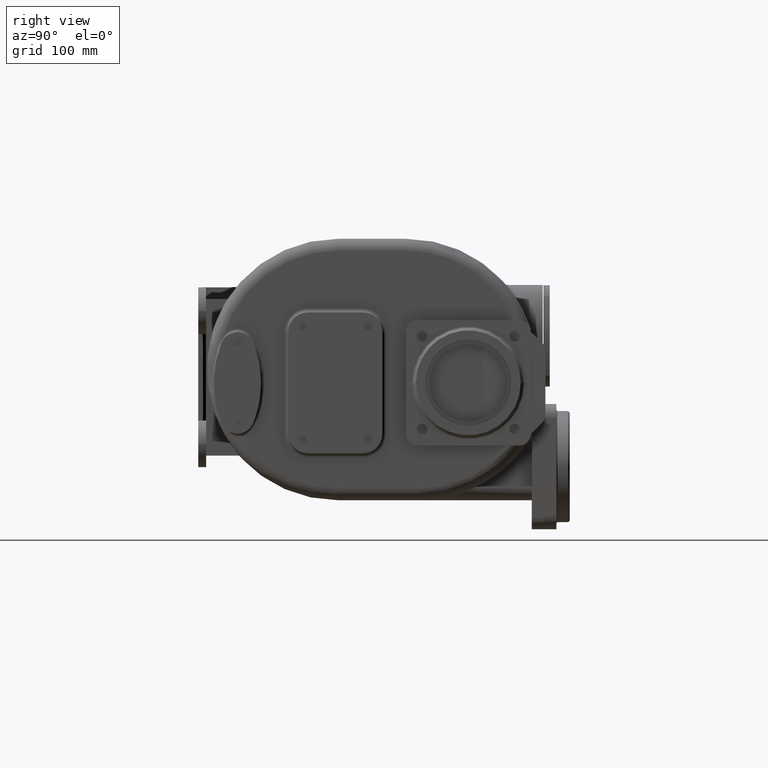
[diagram: clean part render]
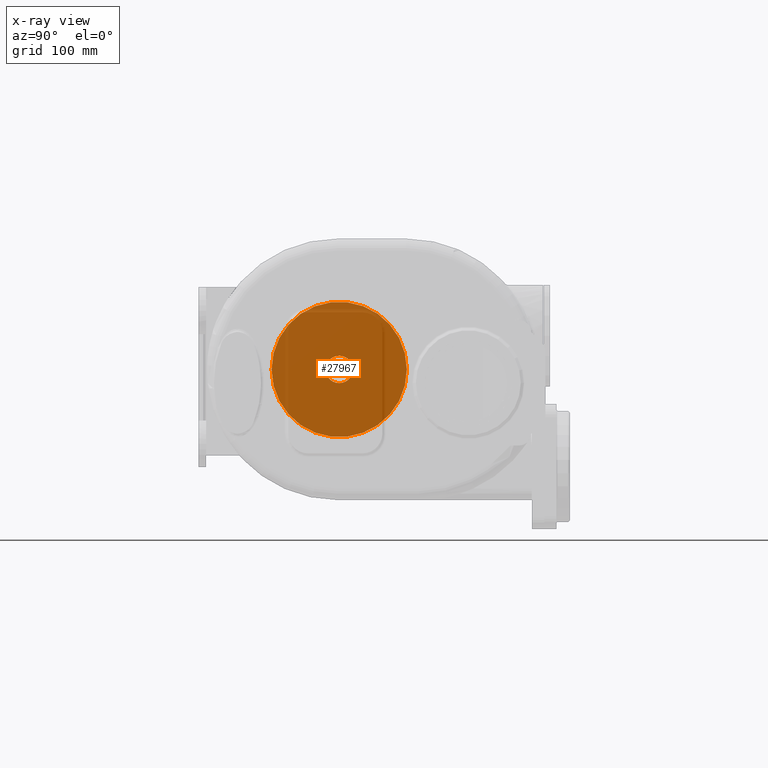
[diagram: x-ray — body ghosted, one internal face saturated and labeled with its STEP entity id]
A machine part, right view, then the same camera in x-ray: the body is ghosted and one INTERNAL B-rep face — a face not visible from any outside direction — is saturated and labeled: STEP entity #27967.
In plain terms, the highlighted planar face has unit normal (1, 0, 0).
Its self-contained STEP definition (entity closure, byte-faithful):
#27670=CARTESIAN_POINT('',(-7.E1,1.7E2,0.E0));
#27671=DIRECTION('',(-1.E0,0.E0,0.E0));
#27672=DIRECTION('',(0.E0,-1.E0,0.E0));
#27673=AXIS2_PLACEMENT_3D('',#27670,#27671,#27672);
#27675=CARTESIAN_POINT('',(-7.E1,1.7E2,0.E0));
#27676=DIRECTION('',(-1.E0,0.E0,0.E0));
#27677=DIRECTION('',(0.E0,1.E0,0.E0));
#27678=AXIS2_PLACEMENT_3D('',#27675,#27676,#27677);
#27680=CARTESIAN_POINT('',(-7.E1,1.7E2,0.E0));
#27681=DIRECTION('',(1.E0,0.E0,0.E0));
#27682=DIRECTION('',(0.E0,0.E0,-1.E0));
#27683=AXIS2_PLACEMENT_3D('',#27680,#27681,#27682);
#27685=DIRECTION('',(0.E0,1.E0,0.E0));
#27686=VECTOR('',#27685,4.270509831248E0);
#27687=CARTESIAN_POINT('',(-7.E1,1.825E2,-5.E0));
#27688=LINE('',#27687,#27686);
#27689=DIRECTION('',(0.E0,0.E0,-1.E0));
#27690=VECTOR('',#27689,1.E1);
#27691=CARTESIAN_POINT('',(-7.E1,1.825E2,5.E0));
#27692=LINE('',#27691,#27690);
#27693=DIRECTION('',(0.E0,1.E0,0.E0));
#27694=VECTOR('',#27693,4.270509831248E0);
#27695=CARTESIAN_POINT('',(-7.E1,1.825E2,5.E0));
#27696=LINE('',#27695,#27694);
#27697=CARTESIAN_POINT('',(-7.E1,1.7E2,0.E0));
#27698=DIRECTION('',(1.E0,0.E0,0.E0));
#27699=DIRECTION('',(0.E0,9.583148474999E-1,2.857142857143E-1));
#27700=AXIS2_PLACEMENT_3D('',#27697,#27698,#27699);
#27702=CARTESIAN_POINT('',(-7.E1,1.7E2,0.E0));
#27703=DIRECTION('',(1.E0,0.E0,0.E0));
#27704=DIRECTION('',(0.E0,0.E0,1.E0));
#27705=AXIS2_PLACEMENT_3D('',#27702,#27703,#27704);
#27893=CARTESIAN_POINT('',(-7.E1,8.359323270451E1,1.058178709931E-14));
#27894=CARTESIAN_POINT('',(-7.E1,2.564067672955E2,0.E0));
#27895=VERTEX_POINT('',#27893);
#27896=VERTEX_POINT('',#27894);
#27905=CARTESIAN_POINT('',(-7.E1,1.7E2,-1.75E1));
#27906=CARTESIAN_POINT('',(-7.E1,1.867705098312E2,-5.E0));
#27907=VERTEX_POINT('',#27905);
#27908=VERTEX_POINT('',#27906);
#27909=CARTESIAN_POINT('',(-7.E1,1.867705098312E2,5.E0));
#27910=CARTESIAN_POINT('',(-7.E1,1.7E2,1.75E1));
#27911=VERTEX_POINT('',#27909);
#27912=VERTEX_POINT('',#27910);
#27913=CARTESIAN_POINT('',(-7.E1,1.825E2,5.E0));
#27914=CARTESIAN_POINT('',(-7.E1,1.825E2,-5.E0));
#27915=VERTEX_POINT('',#27913);
#27916=VERTEX_POINT('',#27914);
#27943=CARTESIAN_POINT('',(-7.E1,1.7E2,0.E0));
#27944=DIRECTION('',(1.E0,0.E0,0.E0));
#27945=DIRECTION('',(0.E0,0.E0,1.E0));
#27946=AXIS2_PLACEMENT_3D('',#27943,#27944,#27945);
#27947=PLANE('',#27946);
#27949=ORIENTED_EDGE('',*,*,#27948,.T.);
#27951=ORIENTED_EDGE('',*,*,#27950,.T.);
#27952=EDGE_LOOP('',(#27949,#27951));
#27953=FACE_OUTER_BOUND('',#27952,.F.);
#27955=ORIENTED_EDGE('',*,*,#27954,.T.);
#27957=ORIENTED_EDGE('',*,*,#27956,.F.);
#27959=ORIENTED_EDGE('',*,*,#27958,.F.);
#27961=ORIENTED_EDGE('',*,*,#27960,.T.);
#27963=ORIENTED_EDGE('',*,*,#27962,.T.);
#27964=ORIENTED_EDGE('',*,*,#27930,.T.);
#27965=EDGE_LOOP('',(#27955,#27957,#27959,#27961,#27963,#27964));
#27966=FACE_BOUND('',#27965,.F.);
#27967=ADVANCED_FACE('',(#27953,#27966),#27947,.T.);
#27674=CIRCLE('',#27673,8.640676729549E1);
#27679=CIRCLE('',#27678,8.640676729549E1);
#27684=CIRCLE('',#27683,1.75E1);
#27701=CIRCLE('',#27700,1.75E1);
#27706=CIRCLE('',#27705,1.75E1);
#27930=EDGE_CURVE('',#27912,#27907,#27706,.T.);
#27948=EDGE_CURVE('',#27895,#27896,#27674,.T.);
#27950=EDGE_CURVE('',#27896,#27895,#27679,.T.);
#27954=EDGE_CURVE('',#27907,#27908,#27684,.T.);
#27956=EDGE_CURVE('',#27916,#27908,#27688,.T.);
#27958=EDGE_CURVE('',#27915,#27916,#27692,.T.);
#27960=EDGE_CURVE('',#27915,#27911,#27696,.T.);
#27962=EDGE_CURVE('',#27911,#27912,#27701,.T.);